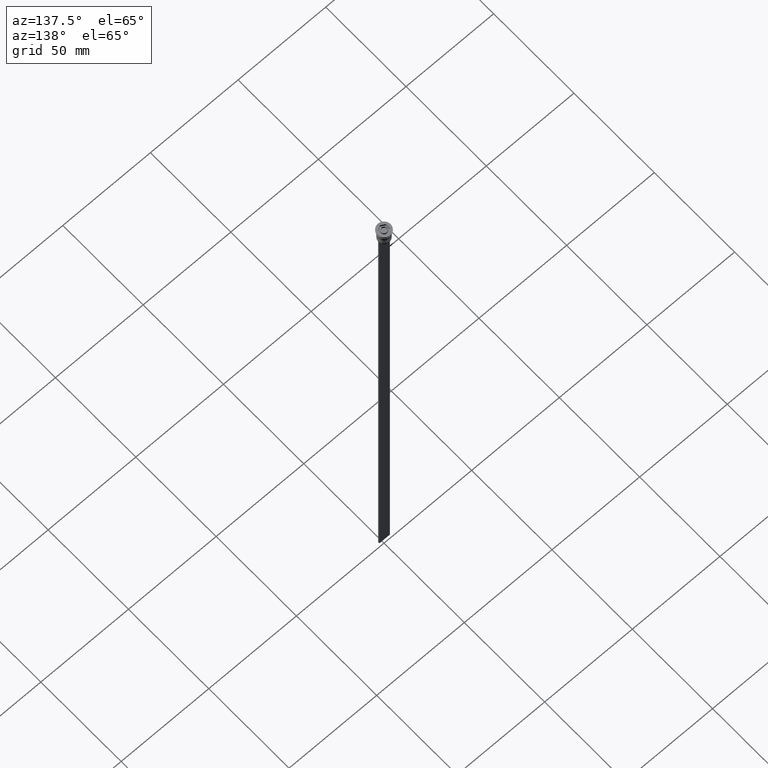
[diagram: clean part render]
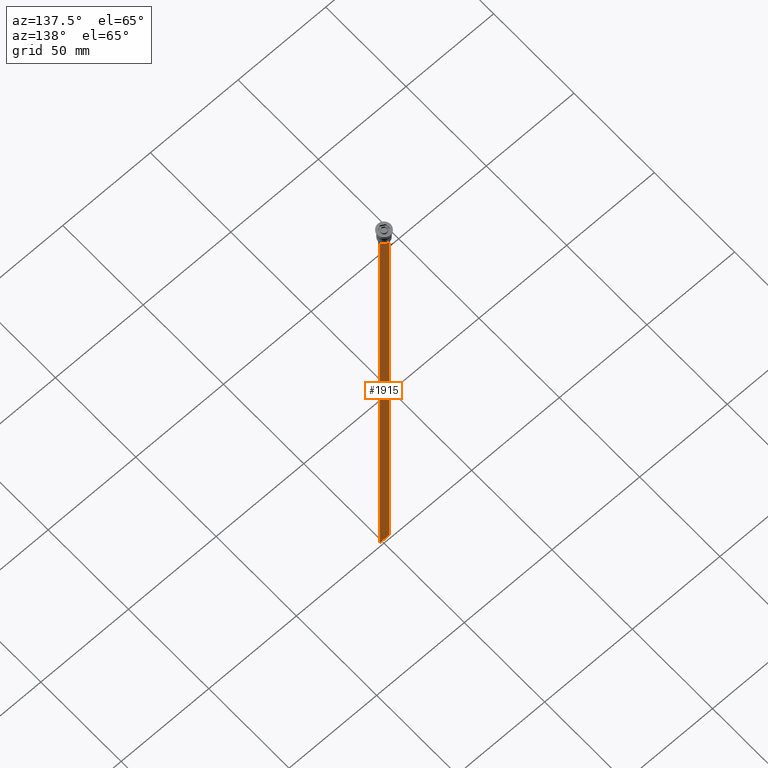
[diagram: same view with one face highlighted and labeled with its STEP entity id]
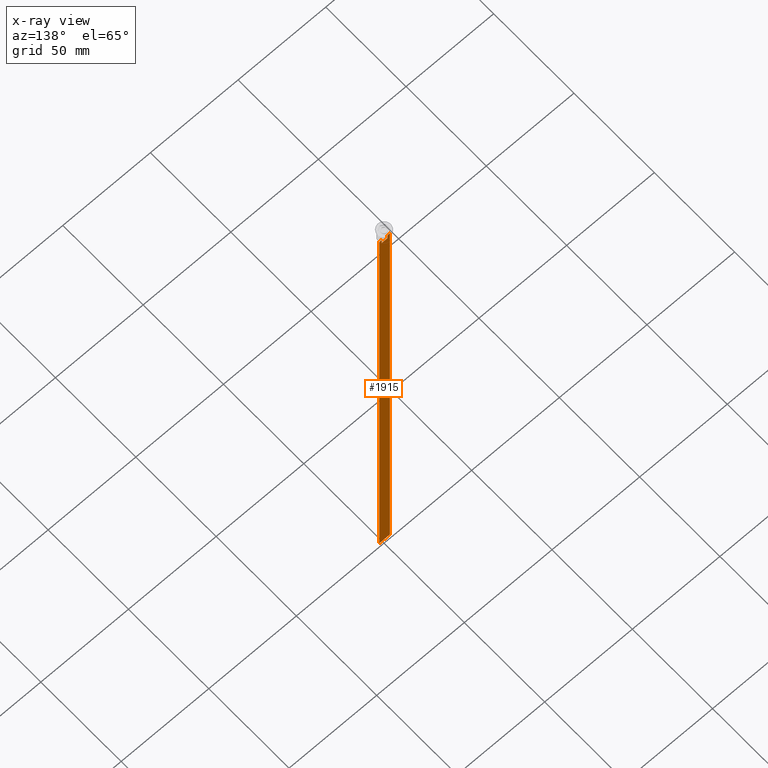
[diagram: x-ray of the same camera — body ghosted, the highlighted face saturated]
A machine part, auxiliary view. The second image highlights one B-rep face of the part: STEP entity #1915.
The next image is the same camera in x-ray: the body ghosted, the highlighted face saturated — about 0% of this face is hidden behind the body in this view.
In plain terms, the highlighted planar face has unit normal (0, -1, -0).
Its self-contained STEP definition (entity closure, byte-faithful):
#37 = EDGE_CURVE ( 'NONE', #86, #2117, #1764, .T. ) ;
#42 = DIRECTION ( 'NONE',  ( 1.000000000000000000, 0.000000000000000000, 0.000000000000000000 ) ) ;
#53 = LINE ( 'NONE', #1748, #922 ) ;
#54 = LINE ( 'NONE', #208, #1452 ) ;
#57 = VERTEX_POINT ( 'NONE', #1987 ) ;
#80 = ORIENTED_EDGE ( 'NONE', *, *, #794, .T. ) ;
#83 = VECTOR ( 'NONE', #744, 1000.000000000000000 ) ;
#86 = VERTEX_POINT ( 'NONE', #1299 ) ;
#102 = EDGE_CURVE ( 'NONE', #931, #1782, #2110, .T. ) ;
#148 = VECTOR ( 'NONE', #42, 1000.000000000000000 ) ;
#151 = DIRECTION ( 'NONE',  ( 0.000000000000000000, 0.000000000000000000, -1.000000000000000000 ) ) ;
#205 = B_SPLINE_CURVE_WITH_KNOTS ( 'NONE', 3,
 ( #1095, #423, #729, #599 ),
 .UNSPECIFIED., .F., .F.,
 ( 4, 4 ),
 ( 0.008600796474521226961, 0.009317962624906524910 ),
 .UNSPECIFIED. ) ;
#208 = CARTESIAN_POINT ( 'NONE',  ( 1.612451549659713601, 0.3500000000000000333, 0.000000000000000000 ) ) ;
#220 = DIRECTION ( 'NONE',  ( 1.000000000000000000, 0.000000000000000000, 0.000000000000000000 ) ) ;
#227 = ORIENTED_EDGE ( 'NONE', *, *, #1142, .T. ) ;
#231 = CARTESIAN_POINT ( 'NONE',  ( 2.999999999999995559, 0.3500000000000000333, -7.500000000000000000 ) ) ;
#251 = EDGE_CURVE ( 'NONE', #2117, #57, #1755, .T. ) ;
#291 = VECTOR ( 'NONE', #1759, 1000.000000000000000 ) ;
#303 = VERTEX_POINT ( 'NONE', #1180 ) ;
#314 = EDGE_CURVE ( 'NONE', #450, #303, #54, .T. ) ;
#352 = DIRECTION ( 'NONE',  ( 0.000000000000000000, 0.000000000000000000, -1.000000000000000000 ) ) ;
#368 = CARTESIAN_POINT ( 'NONE',  ( 2.999999999999995559, 0.3500000000000000333, -7.500000000000000000 ) ) ;
#379 = CARTESIAN_POINT ( 'NONE',  ( -1.612451549659713601, 0.3500000000000000333, 0.000000000000000000 ) ) ;
#402 = CARTESIAN_POINT ( 'NONE',  ( -2.121320343559647270, 0.3500000000000000333, -7.500000000000000000 ) ) ;
#420 = CARTESIAN_POINT ( 'NONE',  ( 1.612451549659713601, 0.3500000000000000333, -10.49999999999999822 ) ) ;
#423 = CARTESIAN_POINT ( 'NONE',  ( 1.782523989086206795, 0.3500000000000000333, -7.833797837268088315 ) ) ;
#450 = VERTEX_POINT ( 'NONE', #420 ) ;
#504 = DIRECTION ( 'NONE',  ( 0.000000000000000000, 0.000000000000000000, -1.000000000000000000 ) ) ;
#599 = CARTESIAN_POINT ( 'NONE',  ( 2.121320343559647270, 0.3500000000000000333, -7.500000000000000000 ) ) ;
#647 = PLANE ( 'NONE',  #1589 ) ;
#696 = CARTESIAN_POINT ( 'NONE',  ( -1.612451549659713601, 0.3500000000000000333, -10.49999999999999822 ) ) ;
#720 = LINE ( 'NONE', #379, #1961 ) ;
#729 = CARTESIAN_POINT ( 'NONE',  ( 1.952040775369266346, 0.3500000000000000333, -7.667021484535463394 ) ) ;
#744 = DIRECTION ( 'NONE',  ( 1.000000000000000000, 0.000000000000000000, 0.000000000000000000 ) ) ;
#754 = EDGE_CURVE ( 'NONE', #1920, #931, #1735, .T. ) ;
#777 = CARTESIAN_POINT ( 'NONE',  ( -2.121320343559647270, 0.3500000000000000333, -7.500000000000000000 ) ) ;
#794 = EDGE_CURVE ( 'NONE', #1590, #450, #53, .T. ) ;
#807 = FACE_OUTER_BOUND ( 'NONE', #923, .T. ) ;
#832 = CARTESIAN_POINT ( 'NONE',  ( 2.121320343559647270, 0.3500000000000000333, -7.500000000000000000 ) ) ;
#872 = CARTESIAN_POINT ( 'NONE',  ( -3.000000000000004441, 0.3500000000000000333, -307.5000000000000000 ) ) ;
#894 = ORIENTED_EDGE ( 'NONE', *, *, #754, .T. ) ;
#916 = ORIENTED_EDGE ( 'NONE', *, *, #1170, .T. ) ;
#922 = VECTOR ( 'NONE', #220, 1000.000000000000000 ) ;
#923 = EDGE_LOOP ( 'NONE', ( #1772, #1577, #916, #80, #1816, #968, #894, #2178, #227, #1950 ) ) ;
#931 = VERTEX_POINT ( 'NONE', #1936 ) ;
#955 = CARTESIAN_POINT ( 'NONE',  ( 2.999999999999995559, 0.3500000000000000333, -1.459304675784417915 ) ) ;
#968 = ORIENTED_EDGE ( 'NONE', *, *, #1697, .T. ) ;
#1095 = CARTESIAN_POINT ( 'NONE',  ( 1.612451549659713601, 0.3500000000000000333, -8.000000000000000000 ) ) ;
#1142 = EDGE_CURVE ( 'NONE', #1782, #2050, #1698, .T. ) ;
#1170 = EDGE_CURVE ( 'NONE', #57, #1590, #720, .T. ) ;
#1180 = CARTESIAN_POINT ( 'NONE',  ( 1.612451549659713601, 0.3500000000000000333, -8.000000000000000000 ) ) ;
#1235 = VECTOR ( 'NONE', #504, 1000.000000000000000 ) ;
#1262 = EDGE_CURVE ( 'NONE', #86, #2050, #1396, .T. ) ;
#1299 = CARTESIAN_POINT ( 'NONE',  ( -3.000000000000004441, 0.3499999999999999223, -7.500000000000000000 ) ) ;
#1353 = CARTESIAN_POINT ( 'NONE',  ( -1.612451549659713601, 0.3500000000000000333, -8.000000000000000000 ) ) ;
#1354 = DIRECTION ( 'NONE',  ( -1.000000000000000000, 0.000000000000000000, 0.000000000000000000 ) ) ;
#1396 = LINE ( 'NONE', #1921, #291 ) ;
#1416 = VECTOR ( 'NONE', #1354, 1000.000000000000000 ) ;
#1452 = VECTOR ( 'NONE', #1695, 1000.000000000000000 ) ;
#1474 = DIRECTION ( 'NONE',  ( 0.000000000000000000, -1.000000000000000000, -0.000000000000000000 ) ) ;
#1577 = ORIENTED_EDGE ( 'NONE', *, *, #251, .T. ) ;
#1589 = AXIS2_PLACEMENT_3D ( 'NONE', #955, #1474, #151 ) ;
#1590 = VERTEX_POINT ( 'NONE', #696 ) ;
#1617 = CARTESIAN_POINT ( 'NONE',  ( -1.782527878033863589, 0.3500000000000000333, -7.833794036819862860 ) ) ;
#1695 = DIRECTION ( 'NONE',  ( -0.000000000000000000, -0.000000000000000000, 1.000000000000000000 ) ) ;
#1697 = EDGE_CURVE ( 'NONE', #303, #1920, #205, .T. ) ;
#1698 = LINE ( 'NONE', #2029, #1416 ) ;
#1711 = CARTESIAN_POINT ( 'NONE',  ( 2.999999999999995559, 0.3500000000000000333, -1.459304675784417915 ) ) ;
#1735 = LINE ( 'NONE', #368, #148 ) ;
#1748 = CARTESIAN_POINT ( 'NONE',  ( 0.000000000000000000, 0.3500000000000000333, -10.49999999999999822 ) ) ;
#1755 = B_SPLINE_CURVE_WITH_KNOTS ( 'NONE', 3,
 ( #777, #1800, #1617, #1353 ),
 .UNSPECIFIED., .F., .F.,
 ( 4, 4 ),
 ( 0.003684653461239336628, 0.004398058763641255961 ),
 .UNSPECIFIED. ) ;
#1759 = DIRECTION ( 'NONE',  ( 0.000000000000000000, 0.000000000000000000, -1.000000000000000000 ) ) ;
#1764 = LINE ( 'NONE', #231, #83 ) ;
#1772 = ORIENTED_EDGE ( 'NONE', *, *, #37, .T. ) ;
#1782 = VERTEX_POINT ( 'NONE', #1783 ) ;
#1783 = CARTESIAN_POINT ( 'NONE',  ( 2.999999999999995559, 0.3500000000000000333, -307.5000000000000000 ) ) ;
#1800 = CARTESIAN_POINT ( 'NONE',  ( -1.952043732028445167, 0.3500000000000000333, -7.667018567316270961 ) ) ;
#1816 = ORIENTED_EDGE ( 'NONE', *, *, #314, .T. ) ;
#1915 = ADVANCED_FACE ( 'NONE', ( #807 ), #647, .F. ) ;
#1920 = VERTEX_POINT ( 'NONE', #832 ) ;
#1921 = CARTESIAN_POINT ( 'NONE',  ( -3.000000000000004441, 0.3500000000000000333, -1.459304675784417915 ) ) ;
#1936 = CARTESIAN_POINT ( 'NONE',  ( 2.999999999999995559, 0.3500000000000000333, -7.500000000000000000 ) ) ;
#1950 = ORIENTED_EDGE ( 'NONE', *, *, #1262, .F. ) ;
#1961 = VECTOR ( 'NONE', #352, 1000.000000000000000 ) ;
#1987 = CARTESIAN_POINT ( 'NONE',  ( -1.612451549659713601, 0.3500000000000000333, -8.000000000000000000 ) ) ;
#2029 = CARTESIAN_POINT ( 'NONE',  ( 2.999999999999995559, 0.3500000000000000333, -307.5000000000000000 ) ) ;
#2050 = VERTEX_POINT ( 'NONE', #872 ) ;
#2110 = LINE ( 'NONE', #1711, #1235 ) ;
#2117 = VERTEX_POINT ( 'NONE', #402 ) ;
#2178 = ORIENTED_EDGE ( 'NONE', *, *, #102, .T. ) ;